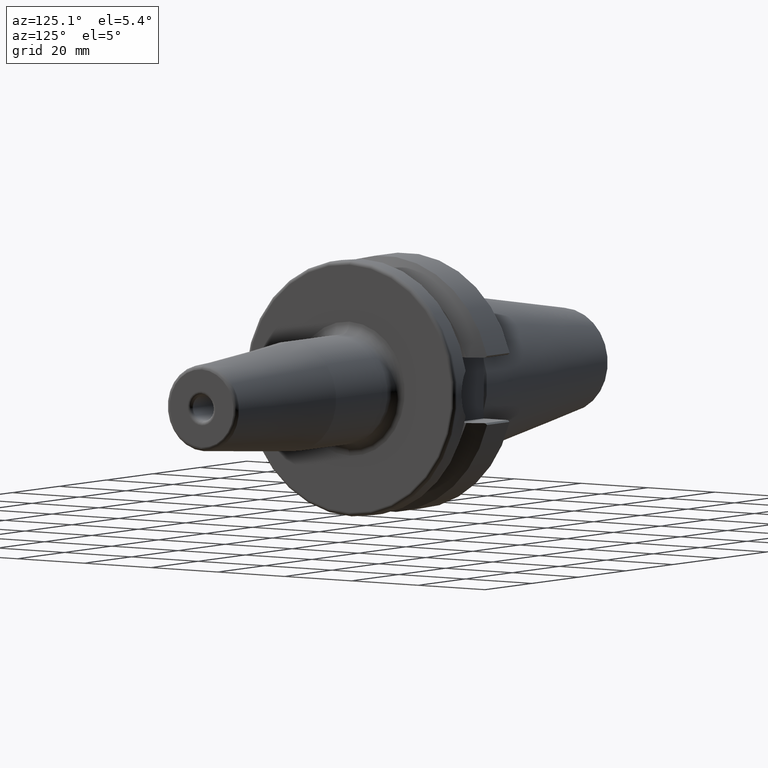
[diagram: clean part render]
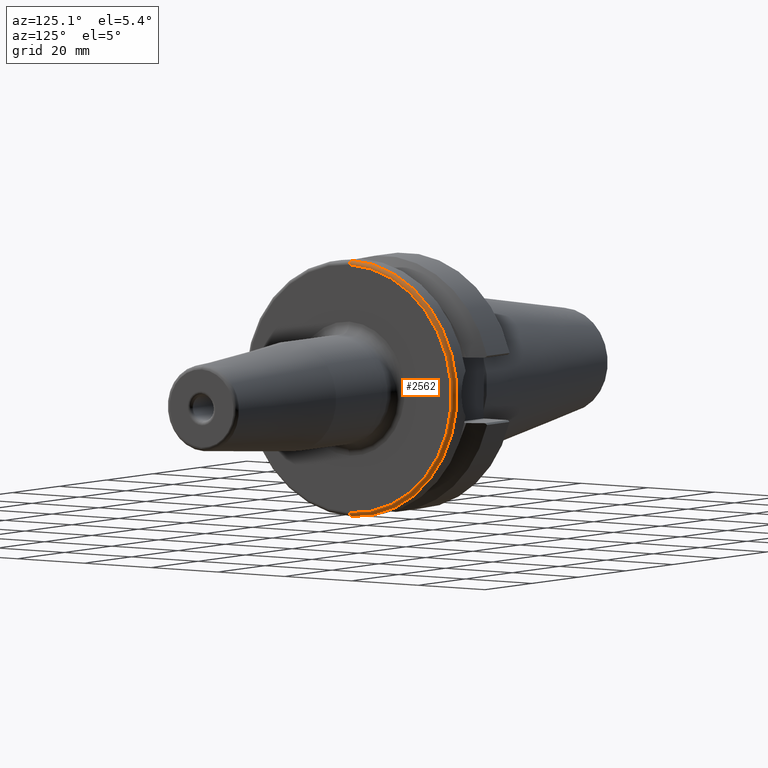
[diagram: same view with one face highlighted and labeled with its STEP entity id]
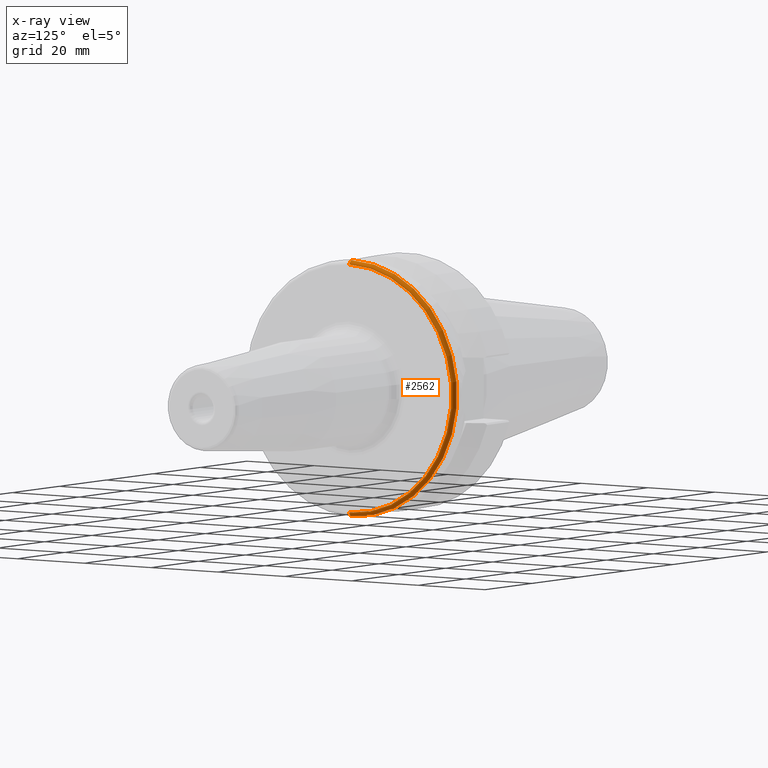
[diagram: x-ray of the same camera — body ghosted, the highlighted face saturated]
A machine part, auxiliary view. The second image highlights one B-rep face of the part: STEP entity #2562.
The next image is the same camera in x-ray: the body ghosted, the highlighted face saturated — about 0% of this face is hidden behind the body in this view.
In plain terms, the highlighted toroidal blend (fillet) surface has major radius 30.5 mm and minor (blend) radius 1 mm.
Its self-contained STEP definition (entity closure, byte-faithful):
#478=CARTESIAN_POINT('',(2.7E1,0.E0,0.E0));
#479=DIRECTION('',(-1.E0,0.E0,0.E0));
#480=DIRECTION('',(0.E0,0.E0,1.E0));
#481=AXIS2_PLACEMENT_3D('',#478,#479,#480);
#493=CARTESIAN_POINT('',(2.6E1,-3.677058657559E-13,-3.05E1));
#494=DIRECTION('',(0.E0,-1.E0,1.201816424157E-14));
#495=DIRECTION('',(0.E0,-1.201816424157E-14,-1.E0));
#496=AXIS2_PLACEMENT_3D('',#493,#494,#495);
#747=CARTESIAN_POINT('',(2.6E1,0.E0,0.E0));
#748=DIRECTION('',(-1.E0,0.E0,0.E0));
#749=DIRECTION('',(0.E0,0.E0,1.E0));
#750=AXIS2_PLACEMENT_3D('',#747,#748,#749);
#988=CARTESIAN_POINT('',(2.6E1,-4.005518139394E-12,3.05E1));
#989=DIRECTION('',(0.E0,1.E0,1.313289754723E-13));
#990=DIRECTION('',(0.E0,-1.313289754723E-13,1.E0));
#991=AXIS2_PLACEMENT_3D('',#988,#989,#990);
#1054=CARTESIAN_POINT('',(2.6E1,0.E0,-3.15E1));
#1055=CARTESIAN_POINT('',(2.6E1,0.E0,3.15E1));
#1056=VERTEX_POINT('',#1054);
#1057=VERTEX_POINT('',#1055);
#1058=CARTESIAN_POINT('',(2.7E1,0.E0,-3.05E1));
#1059=CARTESIAN_POINT('',(2.7E1,0.E0,3.05E1));
#1060=VERTEX_POINT('',#1058);
#1061=VERTEX_POINT('',#1059);
#2551=CARTESIAN_POINT('',(2.6E1,0.E0,0.E0));
#2552=DIRECTION('',(-1.E0,0.E0,0.E0));
#2553=DIRECTION('',(0.E0,-6.569083321303E-3,9.999784233394E-1));
#2554=AXIS2_PLACEMENT_3D('',#2551,#2552,#2553);
#2555=TOROIDAL_SURFACE('',#2554,3.05E1,1.E0);
#2556=ORIENTED_EDGE('',*,*,#2268,.T.);
#2557=ORIENTED_EDGE('',*,*,#2005,.T.);
#2558=ORIENTED_EDGE('',*,*,#1985,.F.);
#2559=ORIENTED_EDGE('',*,*,#2002,.F.);
#2560=EDGE_LOOP('',(#2556,#2557,#2558,#2559));
#2561=FACE_OUTER_BOUND('',#2560,.F.);
#2562=ADVANCED_FACE('',(#2561),#2555,.T.);
#482=CIRCLE('',#481,3.05E1);
#497=CIRCLE('',#496,1.E0);
#751=CIRCLE('',#750,3.15E1);
#992=CIRCLE('',#991,1.E0);
#1985=EDGE_CURVE('',#1061,#1060,#482,.T.);
#2002=EDGE_CURVE('',#1057,#1061,#992,.T.);
#2005=EDGE_CURVE('',#1056,#1060,#497,.T.);
#2268=EDGE_CURVE('',#1057,#1056,#751,.T.);